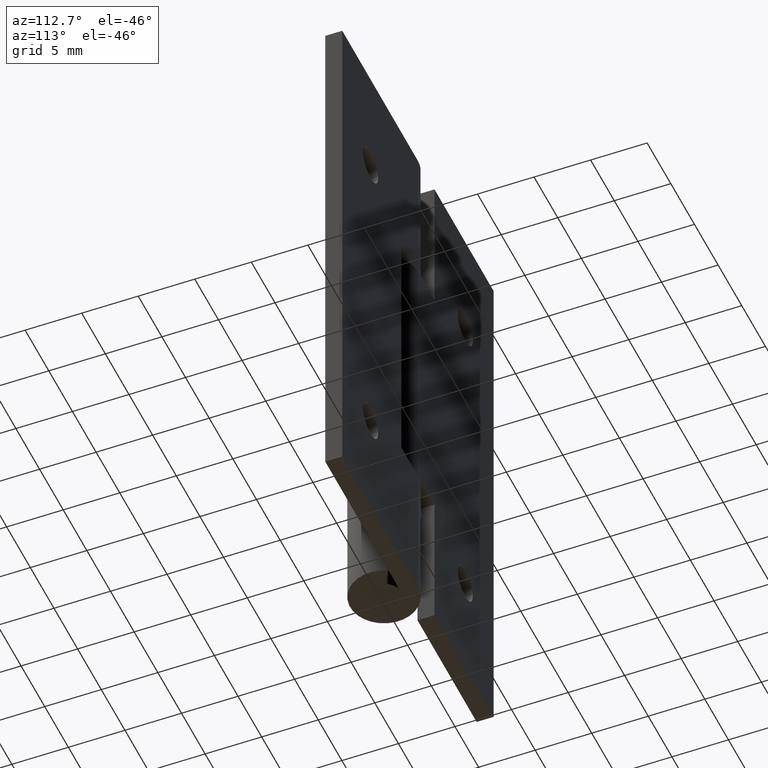
[diagram: clean part render]
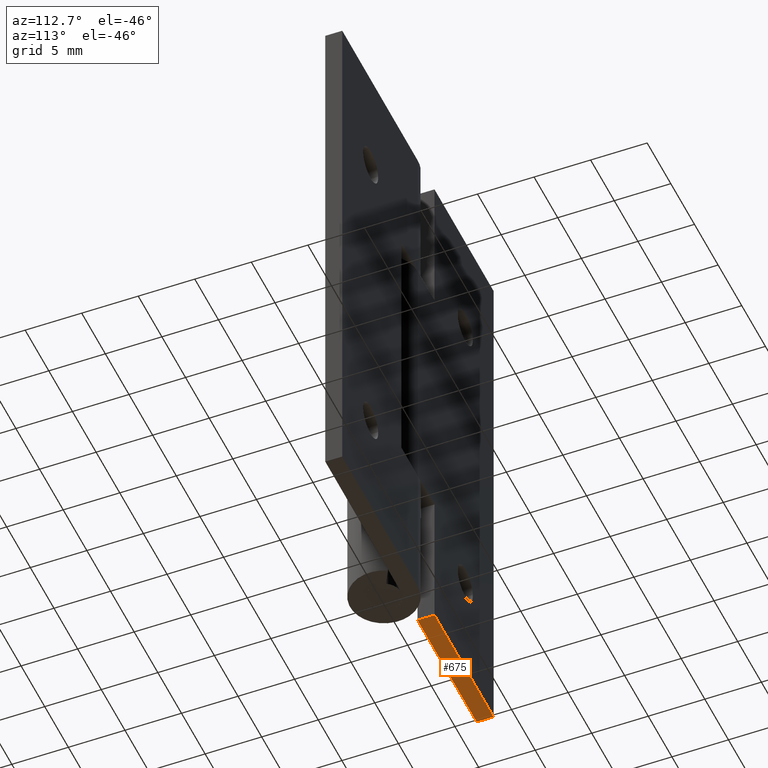
[diagram: same view with one face highlighted and labeled with its STEP entity id]
A machine part, auxiliary view. The second image highlights one B-rep face of the part: STEP entity #675.
In plain terms, the highlighted face is a freeform B-spline surface patch.
Its self-contained STEP definition (entity closure, byte-faithful):
#415=CARTESIAN_POINT('',(-3.500000000000100,1.500000000000000,0.0));
#416=VERTEX_POINT('',#415);
#422=CARTESIAN_POINT('',(-3.500000000000100,3.0,0.0));
#423=VERTEX_POINT('',#422);
#424=CARTESIAN_POINT('',(-3.500000000000100,1.500000000000000,0.0));
#425=CARTESIAN_POINT('',(-3.500000000000100,3.0,0.0));
#426=QUASI_UNIFORM_CURVE('',1,(#424,#425),.UNSPECIFIED.,.F.,.U.);
#427=EDGE_CURVE('',#416,#423,#426,.T.);
#648=CARTESIAN_POINT('',(-16.624374975772572,1.425075002907291,0.0));
#649=CARTESIAN_POINT('',(-2.875624688951403,1.425075002907291,0.0));
#650=CARTESIAN_POINT('',(-16.624374975772572,3.074925037325845,0.0));
#651=CARTESIAN_POINT('',(-2.875624688951403,3.074925037325845,0.0));
#652=B_SPLINE_SURFACE_WITH_KNOTS('',1,1,((#648,#650),(#649,#651)),.UNSPECIFIED.,.F.,.F.,.U.,(2,2),(2,2),(0.0,13.748750286821171),(0.041708334948495,0.958291687403247),.UNSPECIFIED.);
#653=ORIENTED_EDGE('',*,*,#427,.F.);
#654=CARTESIAN_POINT('',(-16.0,1.500000000000000,0.0));
#655=VERTEX_POINT('',#654);
#656=CARTESIAN_POINT('',(-16.0,1.500000000000000,0.0));
#657=CARTESIAN_POINT('',(-3.500000000000100,1.500000000000000,0.0));
#658=QUASI_UNIFORM_CURVE('',1,(#656,#657),.UNSPECIFIED.,.F.,.U.);
#659=EDGE_CURVE('',#655,#416,#658,.T.);
#660=ORIENTED_EDGE('',*,*,#659,.F.);
#661=CARTESIAN_POINT('',(-16.0,3.0,0.0));
#662=VERTEX_POINT('',#661);
#663=CARTESIAN_POINT('',(-16.0,3.0,0.0));
#664=CARTESIAN_POINT('',(-16.0,1.500000000000000,0.0));
#665=QUASI_UNIFORM_CURVE('',1,(#663,#664),.UNSPECIFIED.,.F.,.U.);
#666=EDGE_CURVE('',#662,#655,#665,.T.);
#667=ORIENTED_EDGE('',*,*,#666,.F.);
#668=CARTESIAN_POINT('',(-3.500000000000100,3.0,0.0));
#669=CARTESIAN_POINT('',(-16.0,3.0,0.0));
#670=QUASI_UNIFORM_CURVE('',1,(#668,#669),.UNSPECIFIED.,.F.,.U.);
#671=EDGE_CURVE('',#423,#662,#670,.T.);
#672=ORIENTED_EDGE('',*,*,#671,.F.);
#673=EDGE_LOOP('',(#653,#660,#667,#672));
#674=FACE_OUTER_BOUND('',#673,.T.);
#675=ADVANCED_FACE('',(#674),#652,.F.);